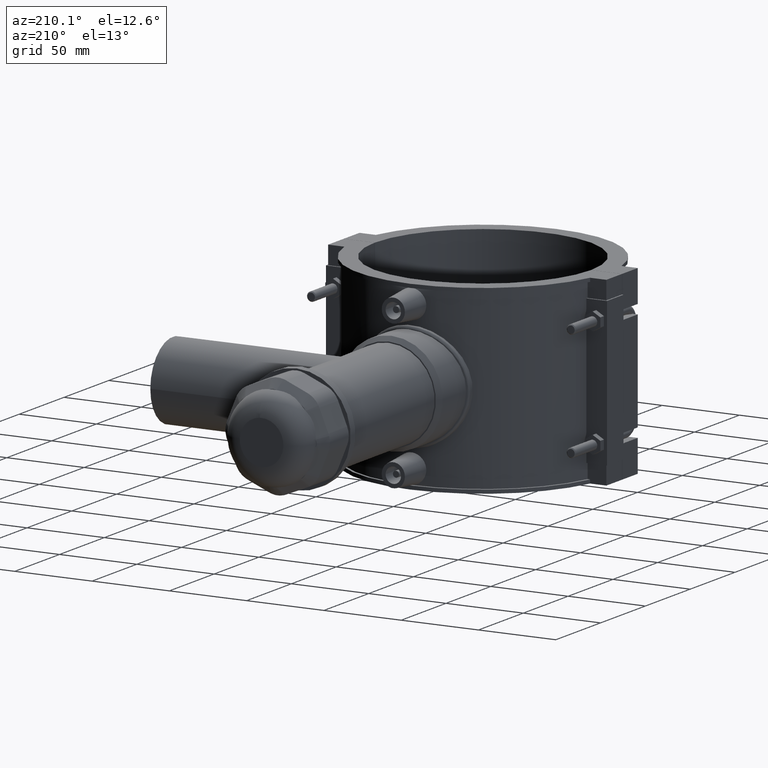
[diagram: clean part render]
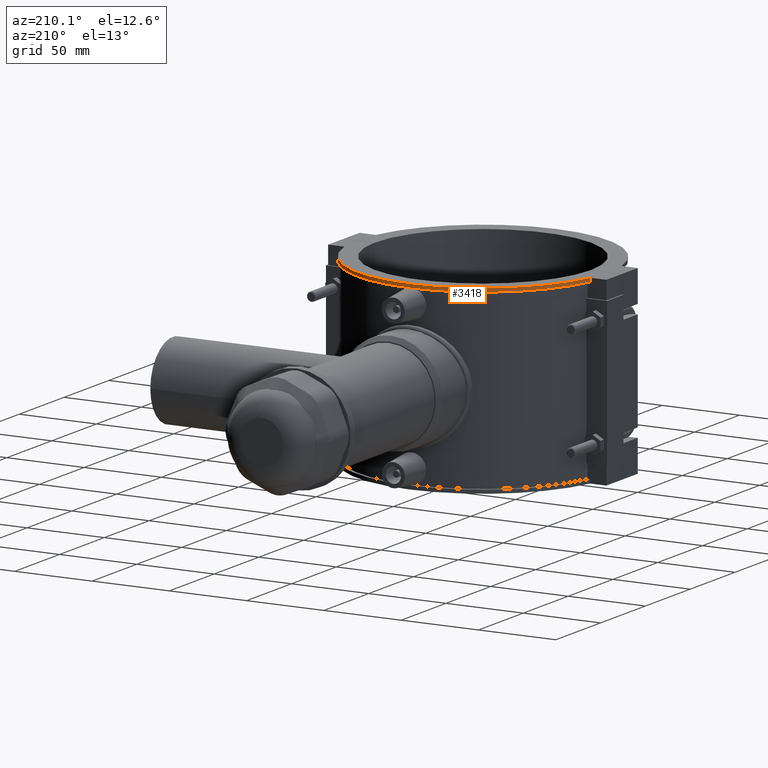
[diagram: same view with one face highlighted and labeled with its STEP entity id]
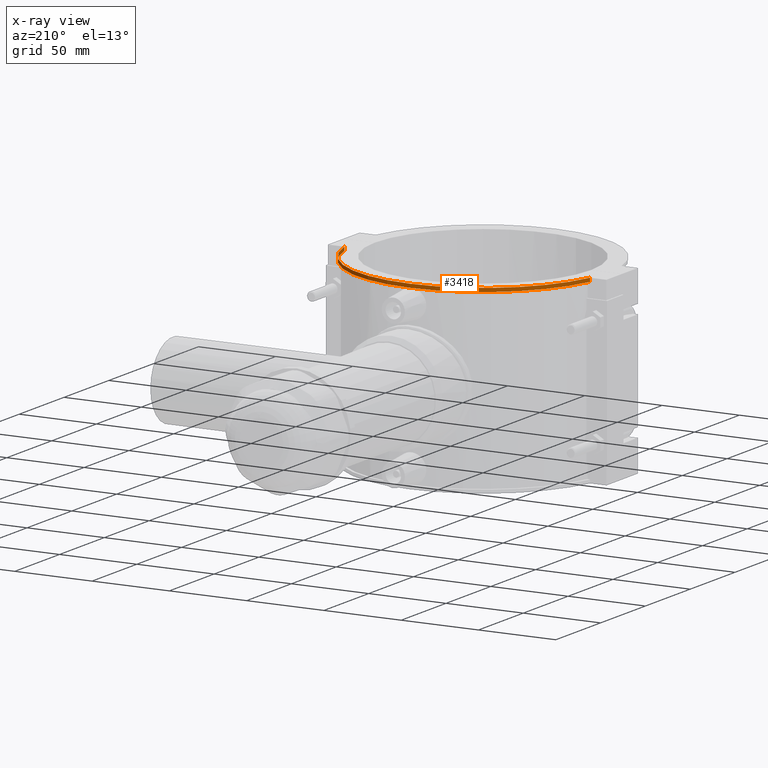
[diagram: x-ray of the same camera — body ghosted, the highlighted face saturated]
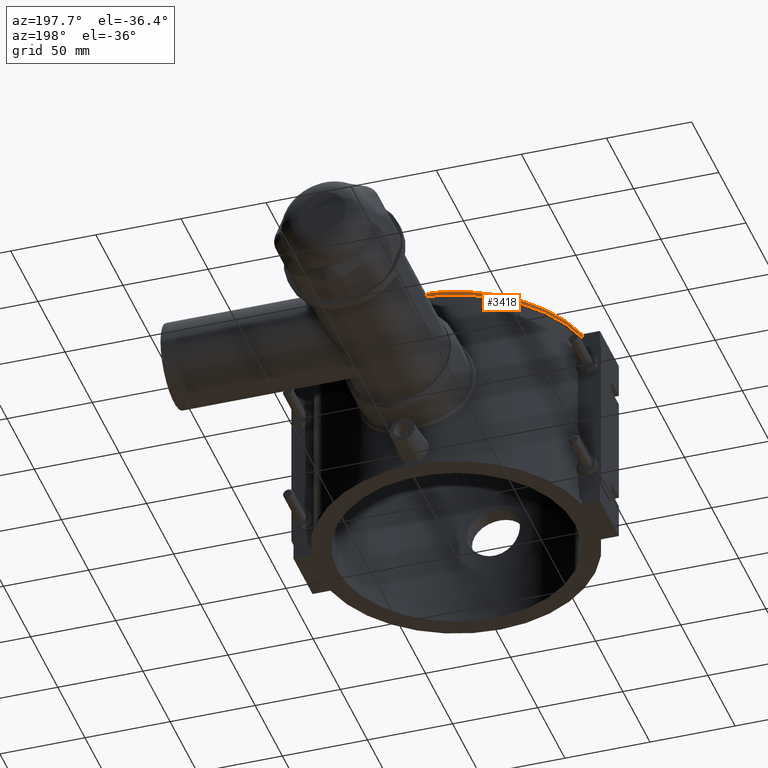
[diagram: same view with one face highlighted and labeled with its STEP entity id]
A machine part, auxiliary view. The second image highlights one B-rep face of the part: STEP entity #3418.
The next image is the same camera in x-ray: the body ghosted, the highlighted face saturated — about 0% of this face is hidden behind the body in this view.
A second angle (auxiliary view) of the same face is appended — the face is thin or edge-on in the first view.
In plain terms, the highlighted cylindrical surface (partial cylindrical patch) has radius 81.396 mm, axis along (0, 0, -1).
Its self-contained STEP definition (entity closure, byte-faithful):
#127=LINE('',#6191,#414);
#128=LINE('',#6194,#415);
#414=VECTOR('',#4168,2.36);
#415=VECTOR('',#4171,2.36);
#793=CYLINDRICAL_SURFACE('',#3661,81.396);
#902=FACE_OUTER_BOUND('',#1126,.T.);
#1126=EDGE_LOOP('',(#2568,#2569,#2570,#2571));
#1344=CIRCLE('',#3662,81.396);
#1345=CIRCLE('',#3663,81.396);
#1535=VERTEX_POINT('',#6187);
#1536=VERTEX_POINT('',#6188);
#1537=VERTEX_POINT('',#6190);
#1538=VERTEX_POINT('',#6192);
#1921=EDGE_CURVE('',#1535,#1536,#1344,.T.);
#1922=EDGE_CURVE('',#1537,#1535,#127,.T.);
#1923=EDGE_CURVE('',#1538,#1537,#1345,.T.);
#1924=EDGE_CURVE('',#1536,#1538,#128,.T.);
#2568=ORIENTED_EDGE('',*,*,#1921,.F.);
#2569=ORIENTED_EDGE('',*,*,#1922,.F.);
#2570=ORIENTED_EDGE('',*,*,#1923,.F.);
#2571=ORIENTED_EDGE('',*,*,#1924,.F.);
#3418=ADVANCED_FACE('',(#902),#793,.T.);
#3661=AXIS2_PLACEMENT_3D('',#6186,#4164,#4165);
#3662=AXIS2_PLACEMENT_3D('',#6189,#4166,#4167);
#3663=AXIS2_PLACEMENT_3D('',#6193,#4169,#4170);
#4164=DIRECTION('center_axis',(0.,0.,-1.));
#4165=DIRECTION('ref_axis',(0.976614427290077,0.21499828001376,0.));
#4166=DIRECTION('center_axis',(0.,0.,1.));
#4167=DIRECTION('ref_axis',(0.976614427290077,0.21499828001376,0.));
#4168=DIRECTION('',(0.,0.,1.));
#4169=DIRECTION('center_axis',(0.,0.,-1.));
#4170=DIRECTION('ref_axis',(0.976614427290077,0.21499828001376,0.));
#4171=DIRECTION('',(0.,0.,-1.));
#6186=CARTESIAN_POINT('Origin',(0.,0.,59.));
#6187=CARTESIAN_POINT('',(79.4925079237031,17.5,59.));
#6188=CARTESIAN_POINT('',(-79.4925079237031,17.5,59.));
#6189=CARTESIAN_POINT('Origin',(0.,0.,59.));
#6190=CARTESIAN_POINT('',(79.4925079237031,17.5,56.64));
#6191=CARTESIAN_POINT('',(79.4925079237031,17.5,59.));
#6192=CARTESIAN_POINT('',(-79.4925079237031,17.5,56.64));
#6193=CARTESIAN_POINT('Origin',(0.,0.,56.64));
#6194=CARTESIAN_POINT('',(-79.4925079237031,17.5,59.));